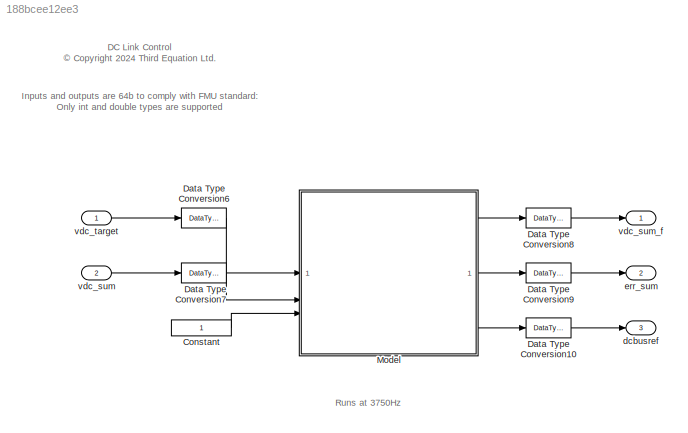
MODEL slx_188bcee12ee3
KIND model
BLOCK [Constant] Constant
  OutDataTypeStr = Inherit: Inherit via back propagation
BLOCK [DataTypeConversion] Data Type Conversion10
  RndMeth = Floor
  SaturateOnIntegerOverflow = off
BLOCK [DataTypeConversion] Data Type Conversion6
  RndMeth = Floor
  SaturateOnIntegerOverflow = off
BLOCK [DataTypeConversion] Data Type Conversion7
  RndMeth = Floor
  SaturateOnIntegerOverflow = off
BLOCK [DataTypeConversion] Data Type Conversion8
  RndMeth = Floor
  SaturateOnIntegerOverflow = off
BLOCK [DataTypeConversion] Data Type Conversion9
  RndMeth = Floor
  SaturateOnIntegerOverflow = off
BLOCK [ModelReference] Model
  ModelNameDialog = DC_core_control.slx
  ModelReferenceVersion = 1.22
BLOCK [Outport] dcbusref
  OutDataTypeStr = double
  Port = 3
BLOCK [Outport] err_sum
  OutDataTypeStr = double
  Port = 2
BLOCK [Inport] vdc_sum
  Port = 2
BLOCK [Outport] vdc_sum_f
  OutDataTypeStr = double
BLOCK [Inport] vdc_target
ANNOTATION (root): DC Link Control <copyright redacted>
ANNOTATION (root): Inputs and outputs are 64b to comply with FMU standard: Only int and double types are supported
ANNOTATION (root): Runs at 3750Hz
LINE Constant:1 -> Model:3
LINE Data Type Conversion10:1 -> dcbusref:1
LINE Data Type Conversion6:1 -> Model:1
LINE Data Type Conversion7:1 -> Model:2
LINE Data Type Conversion8:1 -> vdc_sum_f:1
LINE Data Type Conversion9:1 -> err_sum:1
LINE Model:1 -> Data Type Conversion8:1
LINE Model:2 -> Data Type Conversion9:1
LINE Model:3 -> Data Type Conversion10:1
LINE vdc_sum:1 -> Data Type Conversion7:1
LINE vdc_target:1 -> Data Type Conversion6:1
